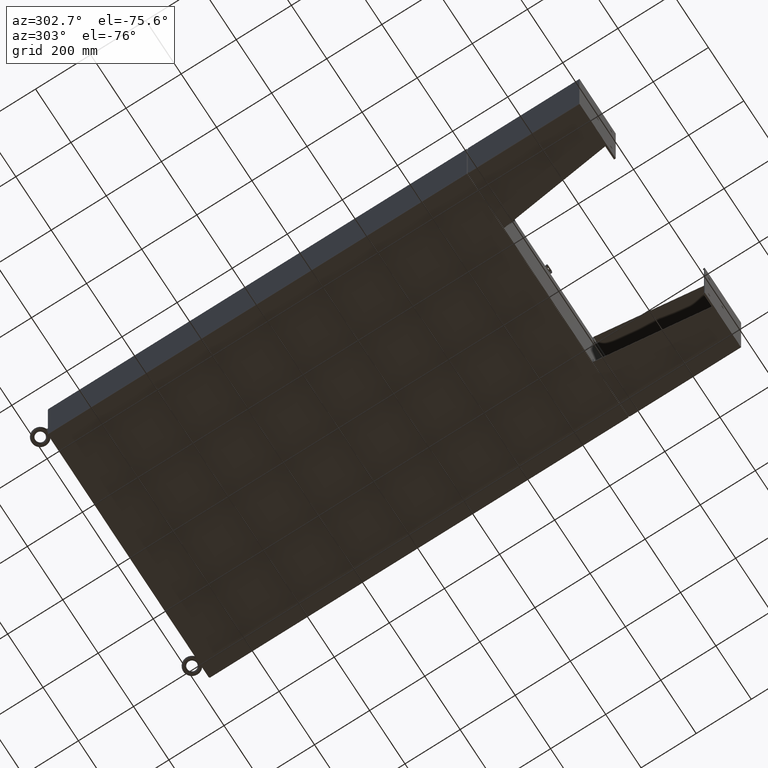
[diagram: clean part render]
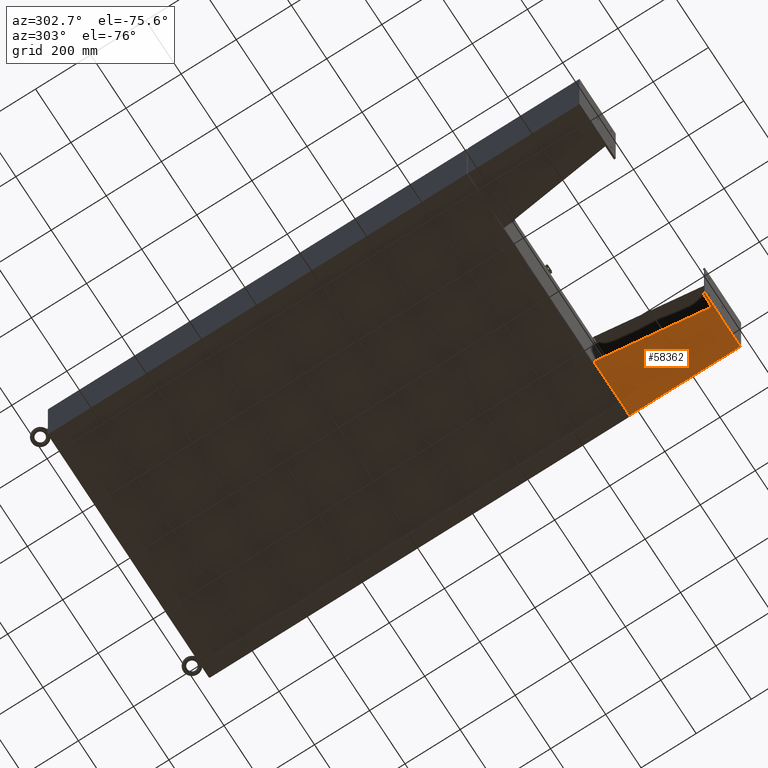
[diagram: same view with one face highlighted and labeled with its STEP entity id]
A machine part, auxiliary view. The second image highlights one B-rep face of the part: STEP entity #58362.
In plain terms, the highlighted planar face has unit normal (-0, 0, 1).
Its self-contained STEP definition (entity closure, byte-faithful):
#543 = CARTESIAN_POINT ( 'NONE',  ( -6.000000000000030200, -7.999999999999999100, 8.000999999999999400 ) ) ;
#1877 = VECTOR ( 'NONE', #55664, 39.37007874015748100 ) ;
#3553 = CARTESIAN_POINT ( 'NONE',  ( -6.000000000000000900, -7.999999999999999100, 0.03899999999999923000 ) ) ;
#5147 = LINE ( 'NONE', #19048, #1877 ) ;
#7356 = VERTEX_POINT ( 'NONE', #40230 ) ;
#7932 = LINE ( 'NONE', #31697, #46527 ) ;
#15123 = EDGE_CURVE ( 'NONE', #51318, #7356, #24790, .T. ) ;
#15163 = DIRECTION ( 'NONE',  ( 0.0000000000000000000, 0.0000000000000000000, -1.000000000000000000 ) ) ;
#17386 = VERTEX_POINT ( 'NONE', #59215 ) ;
#18413 = LINE ( 'NONE', #67356, #46351 ) ;
#19048 = CARTESIAN_POINT ( 'NONE',  ( -6.000000000000030200, 8.000000000000001800, 8.000999999999999400 ) ) ;
#20099 = ORIENTED_EDGE ( 'NONE', *, *, #15123, .F. ) ;
#20389 = ORIENTED_EDGE ( 'NONE', *, *, #60102, .T. ) ;
#23001 = FACE_OUTER_BOUND ( 'NONE', #62197, .T. ) ;
#23167 = CARTESIAN_POINT ( 'NONE',  ( -6.000000000000030200, 8.000000000000001800, 8.000999999999999400 ) ) ;
#24790 = LINE ( 'NONE', #30942, #38795 ) ;
#27575 = DIRECTION ( 'NONE',  ( 0.0000000000000000000, 1.000000000000000000, 0.0000000000000000000 ) ) ;
#28419 = DIRECTION ( 'NONE',  ( 3.550958521948298200E-015, 0.0000000000000000000, -1.000000000000000000 ) ) ;
#30741 = VECTOR ( 'NONE', #57068, 39.37007874015748100 ) ;
#30942 = CARTESIAN_POINT ( 'NONE',  ( -6.000000000000000900, 8.000000000000001800, 0.03899999999999923000 ) ) ;
#31697 = CARTESIAN_POINT ( 'NONE',  ( -6.000000000000030200, -7.999999999999999100, 8.000999999999999400 ) ) ;
#32053 = EDGE_CURVE ( 'NONE', #17386, #7356, #18413, .T. ) ;
#32057 = EDGE_CURVE ( 'NONE', #55923, #17386, #58514, .T. ) ;
#33804 = ORIENTED_EDGE ( 'NONE', *, *, #48004, .T. ) ;
#34407 = VERTEX_POINT ( 'NONE', #39044 ) ;
#37176 = AXIS2_PLACEMENT_3D ( 'NONE', #23167, #59663, #28419 ) ;
#38795 = VECTOR ( 'NONE', #27575, 39.37007874015748100 ) ;
#38992 = VECTOR ( 'NONE', #41577, 39.37007874015748100 ) ;
#39044 = CARTESIAN_POINT ( 'NONE',  ( -6.000000000000030200, -7.750000000000000000, 8.001000000000015400 ) ) ;
#40230 = CARTESIAN_POINT ( 'NONE',  ( -6.000000000000016000, 7.857000000000001100, 0.03900000000000031900 ) ) ;
#40651 = ORIENTED_EDGE ( 'NONE', *, *, #32053, .T. ) ;
#41577 = DIRECTION ( 'NONE',  ( 3.550958521948298200E-015, 0.0000000000000000000, -1.000000000000000000 ) ) ;
#46351 = VECTOR ( 'NONE', #15163, 39.37007874015748100 ) ;
#46527 = VECTOR ( 'NONE', #63207, 39.37007874015748100 ) ;
#46677 = EDGE_CURVE ( 'NONE', #34407, #55923, #52859, .T. ) ;
#46808 = VERTEX_POINT ( 'NONE', #543 ) ;
#48004 = EDGE_CURVE ( 'NONE', #46808, #34407, #5147, .T. ) ;
#51318 = VERTEX_POINT ( 'NONE', #3553 ) ;
#51922 = CARTESIAN_POINT ( 'NONE',  ( -6.000000000000023100, -7.749999999999999100, 6.052216497445934700 ) ) ;
#52859 = LINE ( 'NONE', #67593, #38992 ) ;
#55664 = DIRECTION ( 'NONE',  ( 0.0000000000000000000, 1.000000000000000000, 0.0000000000000000000 ) ) ;
#55923 = VERTEX_POINT ( 'NONE', #65460 ) ;
#57026 = ORIENTED_EDGE ( 'NONE', *, *, #46677, .T. ) ;
#57068 = DIRECTION ( 'NONE',  ( -4.399772607369798900E-016, 0.9922942345449394800, 0.1239038017531047700 ) ) ;
#58107 = ORIENTED_EDGE ( 'NONE', *, *, #32057, .T. ) ;
#58362 = ADVANCED_FACE ( 'NONE', ( #23001 ), #64482, .F. ) ;
#58514 = LINE ( 'NONE', #51922, #30741 ) ;
#59215 = CARTESIAN_POINT ( 'NONE',  ( -6.000000000000030200, 7.857000000000001100, 8.000999999999999400 ) ) ;
#59663 = DIRECTION ( 'NONE',  ( 1.000000000000000000, 0.0000000000000000000, 3.550958521948298200E-015 ) ) ;
#60102 = EDGE_CURVE ( 'NONE', #51318, #46808, #7932, .T. ) ;
#62197 = EDGE_LOOP ( 'NONE', ( #57026, #58107, #40651, #20099, #20389, #33804 ) ) ;
#63207 = DIRECTION ( 'NONE',  ( -3.550958521948298200E-015, 0.0000000000000000000, 1.000000000000000000 ) ) ;
#64482 = PLANE ( 'NONE',  #37176 ) ;
#65460 = CARTESIAN_POINT ( 'NONE',  ( -6.000000000000022200, -7.750000000000000000, 6.052216497445934700 ) ) ;
#67356 = CARTESIAN_POINT ( 'NONE',  ( -6.000000000000016000, 7.857000000000001100, 8.000999999999999400 ) ) ;
#67593 = CARTESIAN_POINT ( 'NONE',  ( -6.000000000000030200, -7.750000000000000000, 8.000999999999999400 ) ) ;